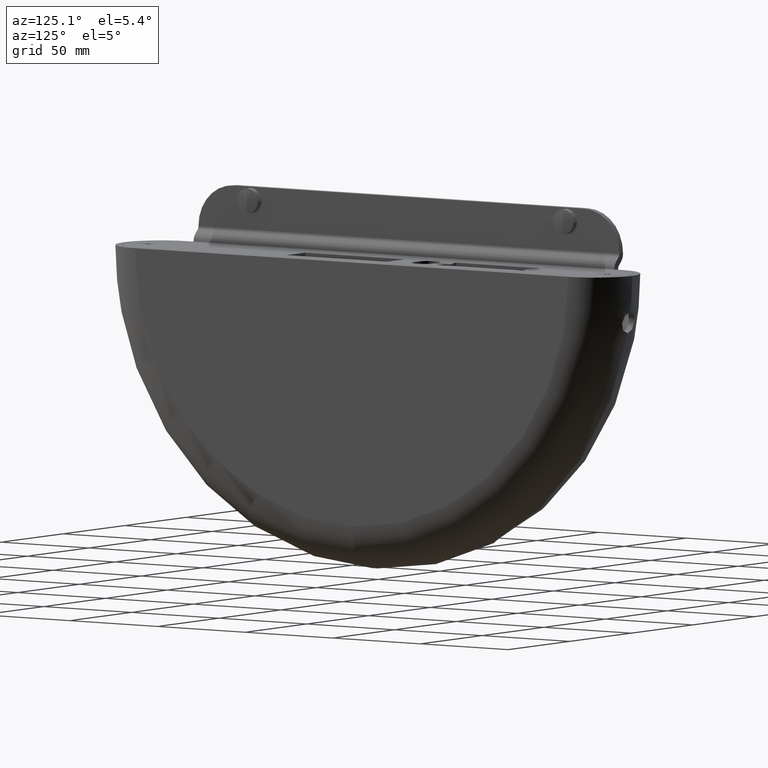
[diagram: clean part render]
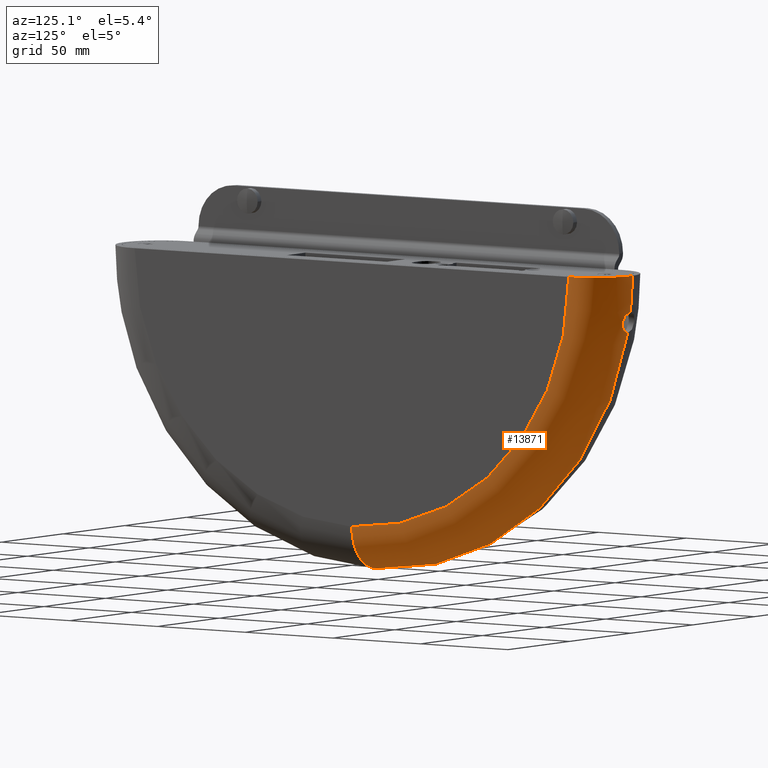
[diagram: same view with one face highlighted and labeled with its STEP entity id]
A machine part, auxiliary view. The second image highlights one B-rep face of the part: STEP entity #13871.
In plain terms, the highlighted toroidal blend (fillet) surface has major radius 123.8 mm and minor (blend) radius 21.2 mm.
Its self-contained STEP definition (entity closure, byte-faithful):
#436 = CARTESIAN_POINT ( 'NONE',  ( 3.328414668656746844, 142.4303775994870875, -25.74594442045003007 ) ) ;
#498 = CARTESIAN_POINT ( 'NONE',  ( 3.306029900175461389, 143.5888264047521261, -18.23521501803115896 ) ) ;
#529 = VERTEX_POINT ( 'NONE', #4371 ) ;
#887 = ORIENTED_EDGE ( 'NONE', *, *, #3122, .F. ) ;
#1520 = CARTESIAN_POINT ( 'NONE',  ( 4.481342667254041068, 143.1645131096402963, -19.75933582640416830 ) ) ;
#1575 = CARTESIAN_POINT ( 'NONE',  ( 4.961143737012707611, 142.8326001803865495, -21.29832005292018948 ) ) ;
#1680 = CARTESIAN_POINT ( 'NONE',  ( 0.6604203441676105291, 143.9882172403216032, -17.03297876336684880 ) ) ;
#1767 = ORIENTED_EDGE ( 'NONE', *, *, #10660, .F. ) ;
#2258 = CARTESIAN_POINT ( 'NONE',  ( 0.000000000000000000, 123.7999999999999972, 4.942406637210611103E-14 ) ) ;
#2455 = CIRCLE ( 'NONE', #13779, 123.7999999999999972 ) ;
#2889 = CARTESIAN_POINT ( 'NONE',  ( 3.052867416754951879, 143.6542717982769091, -18.02686085476289435 ) ) ;
#3003 = CARTESIAN_POINT ( 'NONE',  ( 4.861907560647394710, 142.9263690161984357, -20.82178934244401347 ) ) ;
#3122 = EDGE_CURVE ( 'NONE', #529, #5292, #2455, .T. ) ;
#3365 = DIRECTION ( 'NONE',  ( 0.000000000000000000, 1.000000000000000000, 2.871266442996094569E-16 ) ) ;
#3498 = CARTESIAN_POINT ( 'NONE',  ( 0.000000000000000000, 0.000000000000000000, 1.387778780781445676E-14 ) ) ;
#4046 = CARTESIAN_POINT ( 'NONE',  ( 4.328841401460434390, 143.2362954087872424, -19.47681325645343264 ) ) ;
#4156 = CARTESIAN_POINT ( 'NONE',  ( 3.966318932435457079, 143.3814325889527481, -18.93835773676754997 ) ) ;
#4185 = FACE_OUTER_BOUND ( 'NONE', #6091, .T. ) ;
#4260 = CARTESIAN_POINT ( 'NONE',  ( 3.075358081791182308, 142.4319332193966261, -25.95604151288944905 ) ) ;
#4371 = CARTESIAN_POINT ( 'NONE',  ( 21.19999999999999929, 0.000000000000000000, -123.7999999999999829 ) ) ;
#4451 = CARTESIAN_POINT ( 'NONE',  ( -1.618002527376805763E-22, 144.0000000000000284, -16.99999999999999645 ) ) ;
#4732 = EDGE_CURVE ( 'NONE', #5756, #12906, #12012, .T. ) ;
#4806 = EDGE_CURVE ( 'NONE', #5311, #5756, #9236, .T. ) ;
#4894 = DIRECTION ( 'NONE',  ( 0.000000000000000000, 0.000000000000000000, -1.000000000000000000 ) ) ;
#5169 = CIRCLE ( 'NONE', #10752, 21.19999999999999574 ) ;
#5210 = AXIS2_PLACEMENT_3D ( 'NONE', #14309, #10701, #12015 ) ;
#5251 = CARTESIAN_POINT ( 'NONE',  ( 2.226376900999210040, 143.8229053348088939, -17.51108956724637267 ) ) ;
#5292 = VERTEX_POINT ( 'NONE', #13243 ) ;
#5311 = VERTEX_POINT ( 'NONE', #8207 ) ;
#5410 = CARTESIAN_POINT ( 'NONE',  ( 4.853876704241894657, 142.5547860825450073, -23.24371107610067710 ) ) ;
#5421 = EDGE_CURVE ( 'NONE', #5292, #5311, #5169, .T. ) ;
#5756 = VERTEX_POINT ( 'NONE', #4451 ) ;
#6091 = EDGE_LOOP ( 'NONE', ( #11232, #1767, #14114, #12204, #8149, #887 ) ) ;
#6485 = AXIS2_PLACEMENT_3D ( 'NONE', #3498, #14963, #13609 ) ;
#6508 = CARTESIAN_POINT ( 'NONE',  ( 1.622354245527443561, 143.9087986405357924, -17.25921549945514855 ) ) ;
#6561 = CARTESIAN_POINT ( 'NONE',  ( 2.235889005531093154, 142.4428327173609148, -26.48436359829686282 ) ) ;
#6614 = CARTESIAN_POINT ( 'NONE',  ( 1.627650639101779984, 142.4518532555661068, -26.73914231943042452 ) ) ;
#6663 = CARTESIAN_POINT ( 'NONE',  ( 4.002376299943367854, 142.4400134443422985, -25.01475457556397686 ) ) ;
#6723 = CARTESIAN_POINT ( 'NONE',  ( 5.003302619018201725, 142.6740215370617761, -22.26928343835524871 ) ) ;
#7753 = CARTESIAN_POINT ( 'NONE',  ( 4.974519174546502498, 142.6290017839150721, -22.60091204253773256 ) ) ;
#7800 = CARTESIAN_POINT ( 'NONE',  ( 2.530862537540195412, 142.4381247014299561, -26.32467647333515259 ) ) ;
#7910 = CARTESIAN_POINT ( 'NONE',  ( 3.794902804826727483, 142.4344065490670346, -25.27248476078169404 ) ) ;
#7966 = CARTESIAN_POINT ( 'NONE',  ( 4.508384039574726998, 142.4800428531097793, -24.16834985525724733 ) ) ;
#8149 = ORIENTED_EDGE ( 'NONE', *, *, #5421, .F. ) ;
#8207 = CARTESIAN_POINT ( 'NONE',  ( 0.000000000000000000, 145.0000000000000000, 8.326672684688674053E-14 ) ) ;
#8941 = CARTESIAN_POINT ( 'NONE',  ( 0.3332438646167420471, 144.0000000000000568, -17.00000000000000000 ) ) ;
#9057 = CARTESIAN_POINT ( 'NONE',  ( 0.6664491757695052421, 142.4622705693596174, -26.96637513377105577 ) ) ;
#9161 = CARTESIAN_POINT ( 'NONE',  ( 0.3330825271197612181, 142.4640305480649829, -27.00000000000007461 ) ) ;
#9215 = CARTESIAN_POINT ( 'NONE',  ( 1.313784630471338533, 142.4561648019792699, -26.83559783459715931 ) ) ;
#9236 = CIRCLE ( 'NONE', #5210, 144.9999999999999716 ) ;
#9436 = CARTESIAN_POINT ( 'NONE',  ( 21.19999999999999929, 0.000000000000000000, 1.387778780781445676E-14 ) ) ;
#9857 = CARTESIAN_POINT ( 'NONE',  ( 0.000000000000000000, 0.000000000000000000, 1.387778780781445676E-14 ) ) ;
#10362 = CARTESIAN_POINT ( 'NONE',  ( 4.578229282337725081, 142.4901009908735716, -24.01668377136379817 ) ) ;
#10479 = CARTESIAN_POINT ( 'NONE',  ( 4.724073254158373203, 143.0260784405904246, -20.35398646877576567 ) ) ;
#10660 = EDGE_CURVE ( 'NONE', #12906, #11808, #13417, .T. ) ;
#10701 = DIRECTION ( 'NONE',  ( -1.000000000000000000, -0.000000000000000000, -0.000000000000000000 ) ) ;
#10752 = AXIS2_PLACEMENT_3D ( 'NONE', #2258, #13453, #3365 ) ;
#10868 = DIRECTION ( 'NONE',  ( 1.000000000000000000, 0.000000000000000000, 0.000000000000000000 ) ) ;
#10951 = CARTESIAN_POINT ( 'NONE',  ( 0.000000000000000000, 142.4640305480650113, -27.00000000000000000 ) ) ;
#10971 = DIRECTION ( 'NONE',  ( 0.000000000000000000, 0.000000000000000000, -1.000000000000000000 ) ) ;
#11232 = ORIENTED_EDGE ( 'NONE', *, *, #14862, .F. ) ;
#11587 = CARTESIAN_POINT ( 'NONE',  ( 4.272231104483442010, 142.4564295357406820, -24.60287949955280951 ) ) ;
#11637 = CARTESIAN_POINT ( 'NONE',  ( 4.820689892661100373, 142.9591865313660719, -20.66314637509454144 ) ) ;
#11808 = VERTEX_POINT ( 'NONE', #11870 ) ;
#11870 = CARTESIAN_POINT ( 'NONE',  ( 0.000000000000000000, 0.000000000000000000, -144.9999999999999716 ) ) ;
#11963 = CIRCLE ( 'NONE', #13738, 21.20000000000000995 ) ;
#12012 = B_SPLINE_CURVE_WITH_KNOTS ( 'NONE', 3,
 ( #12680, #8941, #1680, #12786, #6508, #5251, #15393, #2889, #498, #14199, #4156, #4046, #1520, #14086, #10479, #11637, #3003, #1575, #12885, #6723, #7753, #5410, #15450, #10362, #7966, #14142, #11587, #6663, #7910, #436, #4260, #7800, #6561, #6614, #9215, #9057, #9161, #13980 ),
 .UNSPECIFIED., .F., .F.,
 ( 4, 2, 2, 2, 2, 2, 2, 2, 2, 2, 2, 2, 2, 2, 2, 2, 2, 2, 4 ),
 ( 1.970634561050127978E-07, 0.0009852535013899451407, 0.001970309939323784936, 0.002955366377257625382, 0.003940422815191465394, 0.004925479253125305407, 0.005910535691059146286, 0.006403063910026070629, 0.006895592128992995840, 0.007880648566926863607, 0.008865705004860729641, 0.009850761442794595674, 0.01034328966176152609, 0.01083581788072845824, 0.01182087431866232601, 0.01280593075659619724, 0.01379098719453006675, 0.01477604363246393625, 0.01576110007039780575 ),
 .UNSPECIFIED. ) ;
#12015 = DIRECTION ( 'NONE',  ( 0.000000000000000000, 8.881784197001253901E-15, -1.000000000000000000 ) ) ;
#12204 = ORIENTED_EDGE ( 'NONE', *, *, #4806, .F. ) ;
#12226 = CARTESIAN_POINT ( 'NONE',  ( 0.000000000000000000, 0.000000000000000000, -123.7999999999999829 ) ) ;
#12333 = DIRECTION ( 'NONE',  ( 0.000000000000000000, 0.000000000000000000, -1.000000000000000000 ) ) ;
#12378 = DIRECTION ( 'NONE',  ( 1.000000000000000000, 0.000000000000000000, 0.000000000000000000 ) ) ;
#12680 = CARTESIAN_POINT ( 'NONE',  ( -1.618002527376805763E-22, 144.0000000000000284, -16.99999999999999645 ) ) ;
#12786 = CARTESIAN_POINT ( 'NONE',  ( 1.303262402074158555, 143.9429144981551758, -17.16171909584664235 ) ) ;
#12885 = CARTESIAN_POINT ( 'NONE',  ( 4.996079487710948897, 142.7756933431593040, -21.61955234246910251 ) ) ;
#12906 = VERTEX_POINT ( 'NONE', #10951 ) ;
#13243 = CARTESIAN_POINT ( 'NONE',  ( 21.19999999999999929, 123.7999999999999972, 7.717964198773502454E-14 ) ) ;
#13292 = AXIS2_PLACEMENT_3D ( 'NONE', #9857, #12378, #4894 ) ;
#13417 = CIRCLE ( 'NONE', #6485, 144.9999999999999716 ) ;
#13453 = DIRECTION ( 'NONE',  ( -0.000000000000000000, -2.871266442996094569E-16, 1.000000000000000000 ) ) ;
#13609 = DIRECTION ( 'NONE',  ( 0.000000000000000000, 1.776356839400250859E-15, -1.000000000000000000 ) ) ;
#13738 = AXIS2_PLACEMENT_3D ( 'NONE', #12226, #16101, #12333 ) ;
#13779 = AXIS2_PLACEMENT_3D ( 'NONE', #9436, #10868, #10971 ) ;
#13871 = ADVANCED_FACE ( 'NONE', ( #4185 ), #15712, .T. ) ;
#13980 = CARTESIAN_POINT ( 'NONE',  ( 0.000000000000000000, 142.4640305480650113, -27.00000000000000000 ) ) ;
#14086 = CARTESIAN_POINT ( 'NONE',  ( 4.668615629823089641, 143.0602624758037962, -20.20284110023113300 ) ) ;
#14114 = ORIENTED_EDGE ( 'NONE', *, *, #4732, .F. ) ;
#14142 = CARTESIAN_POINT ( 'NONE',  ( 4.355492734827030255, 142.4632404934831698, -24.46108731660524782 ) ) ;
#14199 = CARTESIAN_POINT ( 'NONE',  ( 3.761121563028118953, 143.4527843566774266, -18.68980298933171724 ) ) ;
#14309 = CARTESIAN_POINT ( 'NONE',  ( 0.000000000000000000, 0.000000000000000000, 1.387778780781445676E-14 ) ) ;
#14862 = EDGE_CURVE ( 'NONE', #11808, #529, #11963, .T. ) ;
#14963 = DIRECTION ( 'NONE',  ( -1.000000000000000000, -0.000000000000000000, -0.000000000000000000 ) ) ;
#15393 = CARTESIAN_POINT ( 'NONE',  ( 2.512288912384380790, 143.7713572143698286, -17.66476776257487913 ) ) ;
#15450 = CARTESIAN_POINT ( 'NONE',  ( 4.762635340998117250, 142.5250449933683967, -23.55759166344122946 ) ) ;
#15712 = TOROIDAL_SURFACE ( 'NONE', #13292, 123.7999999999999972, 21.19999999999999929 ) ;
#16101 = DIRECTION ( 'NONE',  ( 0.000000000000000000, -1.000000000000000000, 0.000000000000000000 ) ) ;